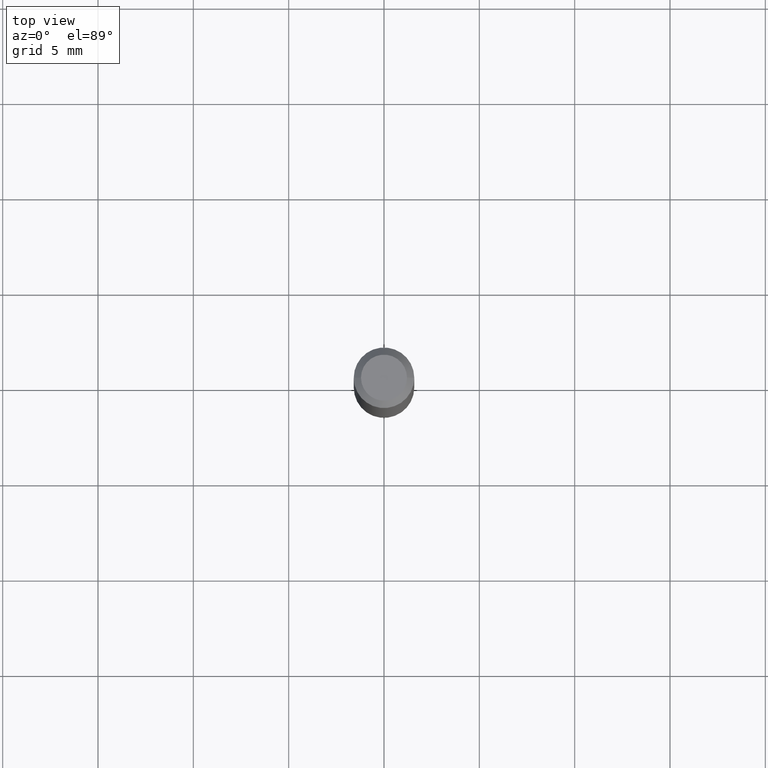
[diagram: clean part render]
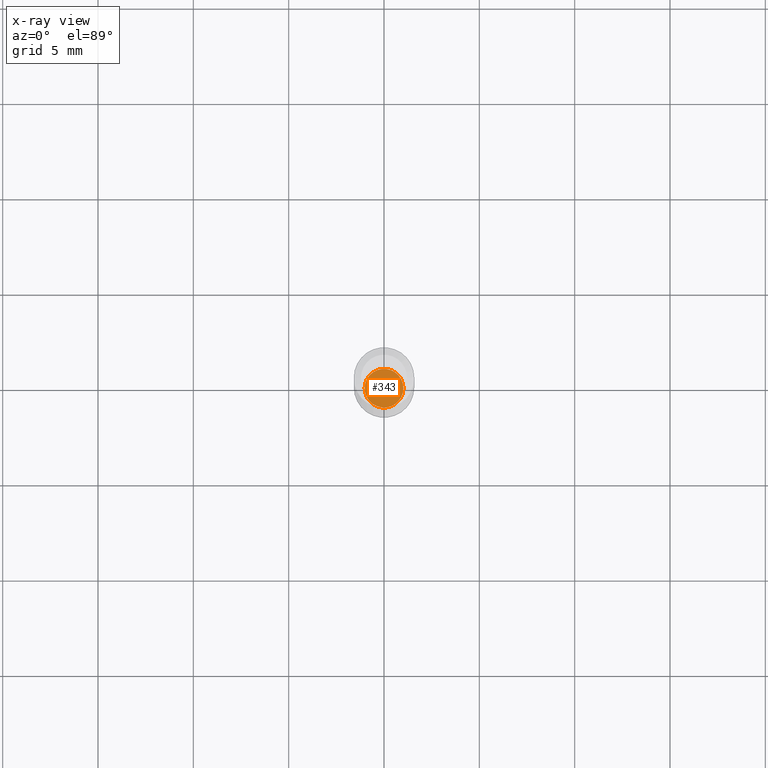
[diagram: x-ray — body ghosted, one internal face saturated and labeled with its STEP entity id]
A machine part, top view, then the same camera in x-ray: the body is ghosted and one INTERNAL B-rep face — a face not visible from any outside direction — is saturated and labeled: STEP entity #343.
In plain terms, the highlighted planar face has unit normal (0, -0, -1).
Its self-contained STEP definition (entity closure, byte-faithful):
#1 = DIRECTION ( 'NONE',  ( -2.445468806185136597E-29, 3.491481338843145583E-15, 1.000000000000000000 ) ) ;
#6 = DIRECTION ( 'NONE',  ( 1.000000000000000000, -6.982962677686259611E-15, 0.000000000000000000 ) ) ;
#11 = CARTESIAN_POINT ( 'NONE',  ( 3.081290695793272291E-29, -4.399266486942364120E-15, -1.260000000000000231 ) ) ;
#57 = DIRECTION ( 'NONE',  ( 2.438088387897960049E-29, -3.491481338843145188E-15, -1.000000000000000000 ) ) ;
#59 = PLANE ( 'NONE',  #189 ) ;
#98 = DIRECTION ( 'NONE',  ( 1.000000000000000000, -6.982962677686259611E-15, 0.000000000000000000 ) ) ;
#103 = CIRCLE ( 'NONE', #133, 0.04000000000000000083 ) ;
#114 = VERTEX_POINT ( 'NONE', #150 ) ;
#133 = AXIS2_PLACEMENT_3D ( 'NONE', #11, #1, #6 ) ;
#138 = FACE_OUTER_BOUND ( 'NONE', #453, .T. ) ;
#150 = CARTESIAN_POINT ( 'NONE',  ( 0.04000000000000000083, -4.678584994049814947E-15, -1.260000000000000231 ) ) ;
#165 = EDGE_CURVE ( 'NONE', #114, #321, #103, .T. ) ;
#168 = CARTESIAN_POINT ( 'NONE',  ( 3.081290695793272291E-29, -4.399266486942364120E-15, -1.260000000000000231 ) ) ;
#189 = AXIS2_PLACEMENT_3D ( 'NONE', #377, #57, #247 ) ;
#247 = DIRECTION ( 'NONE',  ( -1.000000000000000000, 6.982962677686265922E-15, -4.876176775795935793E-29 ) ) ;
#321 = VERTEX_POINT ( 'NONE', #379 ) ;
#343 = ADVANCED_FACE ( 'NONE', ( #138 ), #59, .F. ) ;
#351 = ORIENTED_EDGE ( 'NONE', *, *, #399, .T. ) ;
#377 = CARTESIAN_POINT ( 'NONE',  ( 2.793185071074814439E-16, 0.03999999999999560157, -1.260000000000000453 ) ) ;
#379 = CARTESIAN_POINT ( 'NONE',  ( -0.04000000000000000083, -4.534027153299501216E-15, -1.260000000000000231 ) ) ;
#399 = EDGE_CURVE ( 'NONE', #321, #114, #444, .T. ) ;
#401 = AXIS2_PLACEMENT_3D ( 'NONE', #168, #451, #98 ) ;
#444 = CIRCLE ( 'NONE', #401, 0.04000000000000000083 ) ;
#451 = DIRECTION ( 'NONE',  ( -2.445468806185136597E-29, 3.491481338843145583E-15, 1.000000000000000000 ) ) ;
#453 = EDGE_LOOP ( 'NONE', ( #462, #351 ) ) ;
#462 = ORIENTED_EDGE ( 'NONE', *, *, #165, .T. ) ;